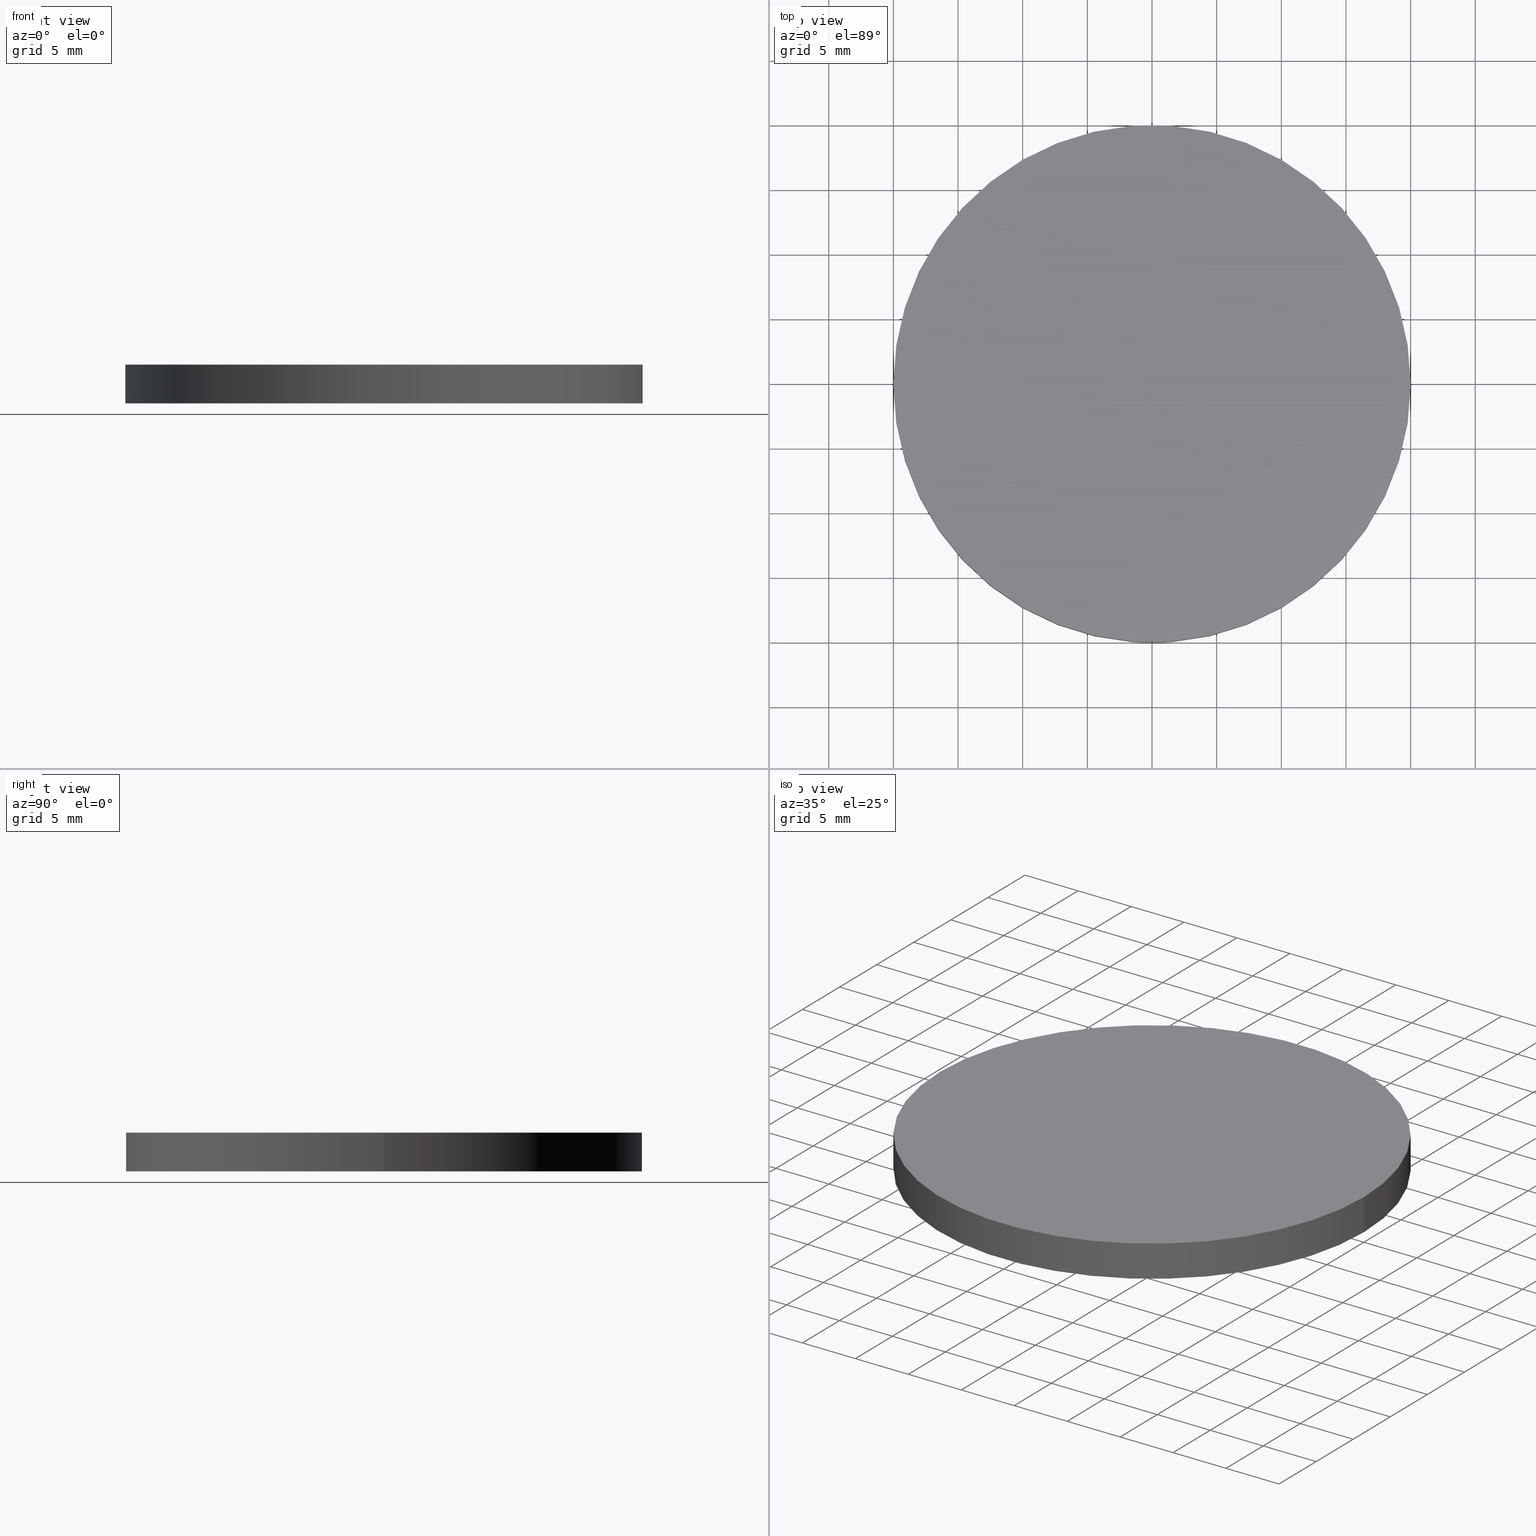
[diagram: canonical four-view strip — front | top / right | iso, engineering-drawing reading convention]
A machine part, canonical four-view strip (front | top / right | iso — engineering-drawing reading convention). The complete STEP part file that produces these views, byte-faithful:
ISO-10303-21;
HEADER;
FILE_DESCRIPTION (( 'STEP AP214' ),
    '1' );
FILE_NAME ('190146.STEP',
    '2019-07-18T02:49:14',
    ( 'user' ),
    ( '΢���й�' ),
    'SwSTEP 2.0',
    'SolidWorks 2016',
    '' );
FILE_SCHEMA (( 'AUTOMOTIVE_DESIGN' ));
ENDSEC;

DATA;
#1 = APPLICATION_PROTOCOL_DEFINITION ( 'draft international standard', 'automotive_design', 1998, #73 ) ;
#2 = MECHANICAL_DESIGN_GEOMETRIC_PRESENTATION_REPRESENTATION (  '', ( #13 ), #76 ) ;
#3 = DIRECTION ( 'NONE',  ( -0.0000000000000000000, -0.0000000000000000000, -1.000000000000000000 ) ) ;
#4 = ORIENTED_EDGE ( 'NONE', *, *, #28, .F. ) ;
#5 = DIRECTION ( 'NONE',  ( 0.0000000000000000000, 0.0000000000000000000, 1.000000000000000000 ) ) ;
#6 = CARTESIAN_POINT ( 'NONE',  ( 20.00000000000000000, 2.449293598294706500E-015, 3.000000000000000000 ) ) ;
#7 = DIRECTION ( 'NONE',  ( -1.000000000000000000, 0.0000000000000000000, 0.0000000000000000000 ) ) ;
#8 = UNCERTAINTY_MEASURE_WITH_UNIT (LENGTH_MEASURE( 1.000000000000000100E-005 ), #33, 'distance_accuracy_value', 'NONE');
#9 = CLOSED_SHELL ( 'NONE', ( #56, #116, #104, #21 ) ) ;
#10 = AXIS2_PLACEMENT_3D ( 'NONE', #125, #45, #110 ) ;
#11 = FACE_OUTER_BOUND ( 'NONE', #121, .T. ) ;
#12 = DIRECTION ( 'NONE',  ( 0.0000000000000000000, 0.0000000000000000000, 1.000000000000000000 ) ) ;
#13 = STYLED_ITEM ( 'NONE', ( #139 ), #41 ) ;
#14 = PRODUCT_CONTEXT ( 'NONE', #74, 'mechanical' ) ;
#15 = AXIS2_PLACEMENT_3D ( 'NONE', #87, #18, #78 ) ;
#16 = DIRECTION ( 'NONE',  ( -0.0000000000000000000, -0.0000000000000000000, -1.000000000000000000 ) ) ;
#17 = FACE_OUTER_BOUND ( 'NONE', #132, .T. ) ;
#18 = DIRECTION ( 'NONE',  ( 0.0000000000000000000, 0.0000000000000000000, 1.000000000000000000 ) ) ;
#19 = SURFACE_STYLE_FILL_AREA ( #63 ) ;
#20 = AXIS2_PLACEMENT_3D ( 'NONE', #34, #98, #24 ) ;
#21 = ADVANCED_FACE ( 'NONE', ( #11 ), #124, .F. ) ;
#22 = EDGE_CURVE ( 'NONE', #62, #67, #131, .T. ) ;
#23 = DIRECTION ( 'NONE',  ( 0.0000000000000000000, 0.0000000000000000000, 1.000000000000000000 ) ) ;
#24 = DIRECTION ( 'NONE',  ( 1.000000000000000000, 0.0000000000000000000, 0.0000000000000000000 ) ) ;
#25 = PRODUCT ( '190146', '190146', '', ( #14 ) ) ;
#26 = DIRECTION ( 'NONE',  ( 1.000000000000000000, 0.0000000000000000000, 0.0000000000000000000 ) ) ;
#27 = CARTESIAN_POINT ( 'NONE',  ( -20.00000000000000000, 0.0000000000000000000, 3.000000000000000000 ) ) ;
#28 = EDGE_CURVE ( 'NONE', #62, #86, #114, .T. ) ;
#29 =( GEOMETRIC_REPRESENTATION_CONTEXT ( 3 ) GLOBAL_UNCERTAINTY_ASSIGNED_CONTEXT ( ( #8 ) ) GLOBAL_UNIT_ASSIGNED_CONTEXT ( ( #33, #97, #59 ) ) REPRESENTATION_CONTEXT ( 'NONE', 'WORKASPACE' ) );
#30 = CIRCLE ( 'NONE', #20, 20.00000000000000000 ) ;
#31 =( NAMED_UNIT ( * ) SI_UNIT ( $, .STERADIAN. ) SOLID_ANGLE_UNIT ( ) );
#32 = ORIENTED_EDGE ( 'NONE', *, *, #96, .T. ) ;
#33 =( LENGTH_UNIT ( ) NAMED_UNIT ( * ) SI_UNIT ( .MILLI., .METRE. ) );
#34 = CARTESIAN_POINT ( 'NONE',  ( 0.0000000000000000000, 0.0000000000000000000, 3.000000000000000000 ) ) ;
#35 = AXIS2_PLACEMENT_3D ( 'NONE', #36, #100, #26 ) ;
#36 = CARTESIAN_POINT ( 'NONE',  ( 0.0000000000000000000, 0.0000000000000000000, 0.0000000000000000000 ) ) ;
#37 =( NAMED_UNIT ( * ) PLANE_ANGLE_UNIT ( ) SI_UNIT ( $, .RADIAN. ) );
#38 = DIRECTION ( 'NONE',  ( -0.0000000000000000000, -0.0000000000000000000, -1.000000000000000000 ) ) ;
#39 = PRESENTATION_STYLE_ASSIGNMENT (( #46 ) ) ;
#40 = AXIS2_PLACEMENT_3D ( 'NONE', #85, #38, #7 ) ;
#41 = ADVANCED_BREP_SHAPE_REPRESENTATION ( '190146', ( #53, #101 ), #29 ) ;
#42 =( GEOMETRIC_REPRESENTATION_CONTEXT ( 3 ) GLOBAL_UNCERTAINTY_ASSIGNED_CONTEXT ( ( #66 ) ) GLOBAL_UNIT_ASSIGNED_CONTEXT ( ( #113, #37, #102 ) ) REPRESENTATION_CONTEXT ( 'NONE', 'WORKASPACE' ) );
#43 = FACE_OUTER_BOUND ( 'NONE', #130, .T. ) ;
#44 =( LENGTH_UNIT ( ) NAMED_UNIT ( * ) SI_UNIT ( .MILLI., .METRE. ) );
#45 = DIRECTION ( 'NONE',  ( 0.0000000000000000000, 0.0000000000000000000, 1.000000000000000000 ) ) ;
#46 = SURFACE_STYLE_USAGE ( .BOTH. , #129 ) ;
#47 = LINE ( 'NONE', #68, #55 ) ;
#48 = MECHANICAL_DESIGN_GEOMETRIC_PRESENTATION_REPRESENTATION (  '', ( #107 ), #42 ) ;
#49 = AXIS2_PLACEMENT_3D ( 'NONE', #133, #12, #93 ) ;
#50 = SURFACE_STYLE_USAGE ( .BOTH. , #135 ) ;
#51 = COLOUR_RGB ( '',1.000000000000000000, 1.000000000000000000, 1.000000000000000000 ) ;
#52 = CARTESIAN_POINT ( 'NONE',  ( 20.00000000000000000, 2.449293598294706500E-015, 0.0000000000000000000 ) ) ;
#53 = MANIFOLD_SOLID_BREP ( '͹̨-����1', #9 ) ;
#54 = FILL_AREA_STYLE ('',( #138 ) ) ;
#55 = VECTOR ( 'NONE', #126, 1000.000000000000000 ) ;
#56 = ADVANCED_FACE ( 'NONE', ( #17 ), #99, .T. ) ;
#57 = PRESENTATION_LAYER_ASSIGNMENT (  '', '', ( #13 ) ) ;
#58 = CIRCLE ( 'NONE', #35, 20.00000000000000000 ) ;
#59 =( NAMED_UNIT ( * ) SI_UNIT ( $, .STERADIAN. ) SOLID_ANGLE_UNIT ( ) );
#60 = PRESENTATION_LAYER_ASSIGNMENT (  '', '', ( #107 ) ) ;
#61 = FACE_OUTER_BOUND ( 'NONE', #89, .T. ) ;
#62 = VERTEX_POINT ( 'NONE', #77 ) ;
#63 = FILL_AREA_STYLE ('',( #64 ) ) ;
#64 = FILL_AREA_STYLE_COLOUR ( '', #51 ) ;
#65 = DIRECTION ( 'NONE',  ( 1.000000000000000000, 0.0000000000000000000, -0.0000000000000000000 ) ) ;
#66 = UNCERTAINTY_MEASURE_WITH_UNIT (LENGTH_MEASURE( 1.000000000000000100E-005 ), #113, 'distance_accuracy_value', 'NONE');
#67 = VERTEX_POINT ( 'NONE', #6 ) ;
#68 = CARTESIAN_POINT ( 'NONE',  ( 20.00000000000000000, 2.449293598294706500E-015, 3.000000000000000000 ) ) ;
#69 = PRODUCT_DEFINITION_SHAPE ( 'NONE', 'NONE',  #108 ) ;
#70 = ORIENTED_EDGE ( 'NONE', *, *, #28, .T. ) ;
#71 = AXIS2_PLACEMENT_3D ( 'NONE', #112, #5, #65 ) ;
#72 = ORIENTED_EDGE ( 'NONE', *, *, #115, .T. ) ;
#73 = APPLICATION_CONTEXT ( 'automotive_design' ) ;
#74 = APPLICATION_CONTEXT ( 'automotive_design' ) ;
#75 = PLANE ( 'NONE',  #71 ) ;
#76 =( GEOMETRIC_REPRESENTATION_CONTEXT ( 3 ) GLOBAL_UNCERTAINTY_ASSIGNED_CONTEXT ( ( #118 ) ) GLOBAL_UNIT_ASSIGNED_CONTEXT ( ( #44, #109, #31 ) ) REPRESENTATION_CONTEXT ( 'NONE', 'WORKASPACE' ) );
#77 = CARTESIAN_POINT ( 'NONE',  ( -20.00000000000000000, 0.0000000000000000000, 3.000000000000000000 ) ) ;
#78 = DIRECTION ( 'NONE',  ( 1.000000000000000000, 0.0000000000000000000, 0.0000000000000000000 ) ) ;
#79 = ORIENTED_EDGE ( 'NONE', *, *, #140, .F. ) ;
#80 = ORIENTED_EDGE ( 'NONE', *, *, #140, .T. ) ;
#81 = PRODUCT_DEFINITION_CONTEXT ( 'detailed design', #73, 'design' ) ;
#82 = DIRECTION ( 'NONE',  ( 1.000000000000000000, 0.0000000000000000000, 0.0000000000000000000 ) ) ;
#83 = APPLICATION_PROTOCOL_DEFINITION ( 'draft international standard', 'automotive_design', 1998, #74 ) ;
#84 = CARTESIAN_POINT ( 'NONE',  ( 0.0000000000000000000, 0.0000000000000000000, 0.0000000000000000000 ) ) ;
#85 = CARTESIAN_POINT ( 'NONE',  ( 0.0000000000000000000, 0.0000000000000000000, 3.000000000000000000 ) ) ;
#86 = VERTEX_POINT ( 'NONE', #103 ) ;
#87 = CARTESIAN_POINT ( 'NONE',  ( 0.0000000000000000000, 0.0000000000000000000, 3.000000000000000000 ) ) ;
#88 = AXIS2_PLACEMENT_3D ( 'NONE', #111, #16, #137 ) ;
#89 = EDGE_LOOP ( 'NONE', ( #105, #72 ) ) ;
#90 = ORIENTED_EDGE ( 'NONE', *, *, #22, .F. ) ;
#91 = COLOUR_RGB ( '',1.000000000000000000, 1.000000000000000000, 1.000000000000000000 ) ;
#92 = EDGE_CURVE ( 'NONE', #86, #123, #58, .T. ) ;
#93 = DIRECTION ( 'NONE',  ( 1.000000000000000000, 0.0000000000000000000, -0.0000000000000000000 ) ) ;
#94 = SURFACE_STYLE_FILL_AREA ( #54 ) ;
#95 = CYLINDRICAL_SURFACE ( 'NONE', #88, 20.00000000000000000 ) ;
#96 = EDGE_CURVE ( 'NONE', #67, #123, #47, .T. ) ;
#97 =( NAMED_UNIT ( * ) PLANE_ANGLE_UNIT ( ) SI_UNIT ( $, .RADIAN. ) );
#98 = DIRECTION ( 'NONE',  ( 0.0000000000000000000, 0.0000000000000000000, 1.000000000000000000 ) ) ;
#99 = CYLINDRICAL_SURFACE ( 'NONE', #40, 20.00000000000000000 ) ;
#100 = DIRECTION ( 'NONE',  ( 0.0000000000000000000, 0.0000000000000000000, 1.000000000000000000 ) ) ;
#101 = AXIS2_PLACEMENT_3D ( 'NONE', #84, #23, #82 ) ;
#102 =( NAMED_UNIT ( * ) SI_UNIT ( $, .STERADIAN. ) SOLID_ANGLE_UNIT ( ) );
#103 = CARTESIAN_POINT ( 'NONE',  ( -20.00000000000000000, 0.0000000000000000000, 0.0000000000000000000 ) ) ;
#104 = ADVANCED_FACE ( 'NONE', ( #61 ), #75, .T. ) ;
#105 = ORIENTED_EDGE ( 'NONE', *, *, #22, .T. ) ;
#106 = SHAPE_DEFINITION_REPRESENTATION ( #69, #41 ) ;
#107 = STYLED_ITEM ( 'NONE', ( #39 ), #53 ) ;
#108 = PRODUCT_DEFINITION ( 'δ֪', '', #119, #81 ) ;
#109 =( NAMED_UNIT ( * ) PLANE_ANGLE_UNIT ( ) SI_UNIT ( $, .RADIAN. ) );
#110 = DIRECTION ( 'NONE',  ( 1.000000000000000000, 0.0000000000000000000, 0.0000000000000000000 ) ) ;
#111 = CARTESIAN_POINT ( 'NONE',  ( 0.0000000000000000000, 0.0000000000000000000, 3.000000000000000000 ) ) ;
#112 = CARTESIAN_POINT ( 'NONE',  ( 0.0000000000000000000, 0.0000000000000000000, 3.000000000000000000 ) ) ;
#113 =( LENGTH_UNIT ( ) NAMED_UNIT ( * ) SI_UNIT ( .MILLI., .METRE. ) );
#114 = LINE ( 'NONE', #27, #136 ) ;
#115 = EDGE_CURVE ( 'NONE', #67, #62, #30, .T. ) ;
#116 = ADVANCED_FACE ( 'NONE', ( #43 ), #95, .T. ) ;
#117 = ORIENTED_EDGE ( 'NONE', *, *, #96, .F. ) ;
#118 = UNCERTAINTY_MEASURE_WITH_UNIT (LENGTH_MEASURE( 1.000000000000000100E-005 ), #44, 'distance_accuracy_value', 'NONE');
#119 = PRODUCT_DEFINITION_FORMATION_WITH_SPECIFIED_SOURCE ( '�κ�', '', #25, .NOT_KNOWN. ) ;
#120 = ORIENTED_EDGE ( 'NONE', *, *, #115, .F. ) ;
#121 = EDGE_LOOP ( 'NONE', ( #127, #79 ) ) ;
#122 = ORIENTED_EDGE ( 'NONE', *, *, #92, .T. ) ;
#123 = VERTEX_POINT ( 'NONE', #52 ) ;
#124 = PLANE ( 'NONE',  #49 ) ;
#125 = CARTESIAN_POINT ( 'NONE',  ( 0.0000000000000000000, 0.0000000000000000000, 0.0000000000000000000 ) ) ;
#126 = DIRECTION ( 'NONE',  ( -0.0000000000000000000, -0.0000000000000000000, -1.000000000000000000 ) ) ;
#127 = ORIENTED_EDGE ( 'NONE', *, *, #92, .F. ) ;
#128 = PRODUCT_RELATED_PRODUCT_CATEGORY ( 'part', '', ( #25 ) ) ;
#129 = SURFACE_SIDE_STYLE ('',( #94 ) ) ;
#130 = EDGE_LOOP ( 'NONE', ( #117, #90, #70, #122 ) ) ;
#131 = CIRCLE ( 'NONE', #15, 20.00000000000000000 ) ;
#132 = EDGE_LOOP ( 'NONE', ( #120, #32, #80, #4 ) ) ;
#133 = CARTESIAN_POINT ( 'NONE',  ( 0.0000000000000000000, 0.0000000000000000000, 0.0000000000000000000 ) ) ;
#134 = CIRCLE ( 'NONE', #10, 20.00000000000000000 ) ;
#135 = SURFACE_SIDE_STYLE ('',( #19 ) ) ;
#136 = VECTOR ( 'NONE', #3, 1000.000000000000000 ) ;
#137 = DIRECTION ( 'NONE',  ( -1.000000000000000000, 0.0000000000000000000, 0.0000000000000000000 ) ) ;
#138 = FILL_AREA_STYLE_COLOUR ( '', #91 ) ;
#139 = PRESENTATION_STYLE_ASSIGNMENT (( #50 ) ) ;
#140 = EDGE_CURVE ( 'NONE', #123, #86, #134, .T. ) ;
ENDSEC;
END-ISO-10303-21;
